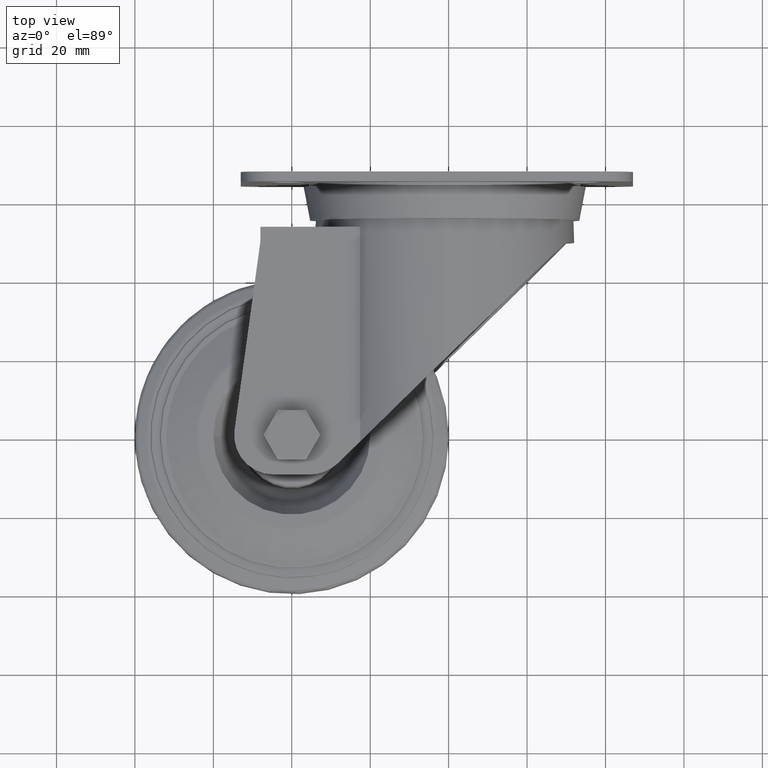
[diagram: clean part render]
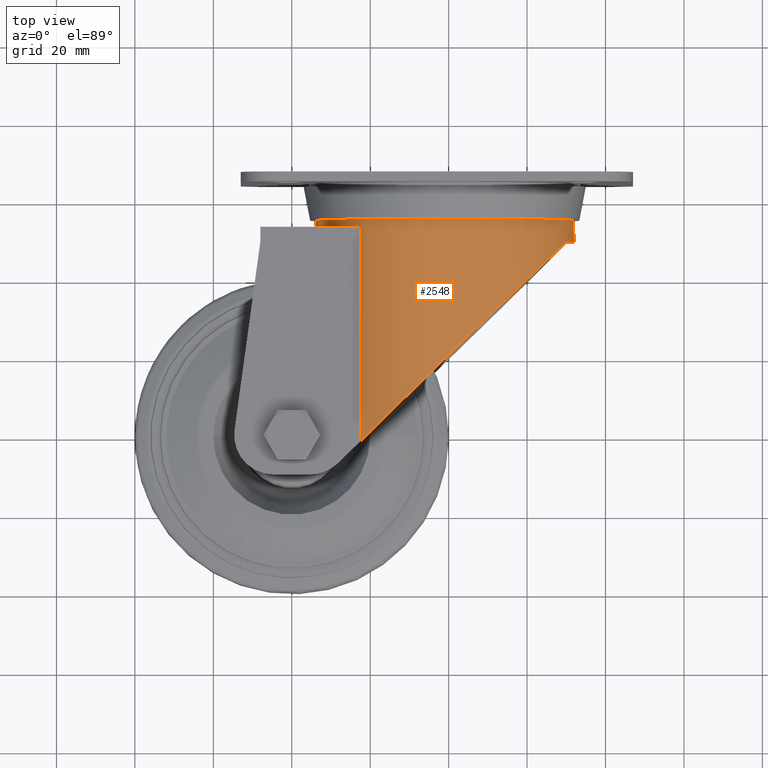
[diagram: same view with one face highlighted and labeled with its STEP entity id]
A machine part, top view. The second image highlights one B-rep face of the part: STEP entity #2548.
In plain terms, the highlighted cylindrical surface (bore or boss wall) has radius 33 mm, axis along (0, -1, 0).
Its self-contained STEP definition (entity closure, byte-faithful):
#55=ELLIPSE('',#2866,46.0100489024635,33.);
#56=ELLIPSE('',#2867,46.0100489024635,33.);
#57=ELLIPSE('',#2868,46.0100489024635,33.);
#265=LINE('',#4387,#393);
#266=LINE('',#4390,#394);
#267=LINE('',#4392,#395);
#393=VECTOR('',#3413,1000.);
#394=VECTOR('',#3416,1000.);
#395=VECTOR('',#3417,33.);
#487=CYLINDRICAL_SURFACE('',#2882,33.);
#575=FACE_OUTER_BOUND('',#751,.T.);
#751=EDGE_LOOP('',(#1977,#1978,#1979,#1980,#1981,#1982,#1983,#1984,#1985,
#1986));
#937=CIRCLE('',#2883,33.);
#938=CIRCLE('',#2884,33.);
#939=CIRCLE('',#2885,33.);
#1193=VERTEX_POINT('',#4328);
#1194=VERTEX_POINT('',#4330);
#1195=VERTEX_POINT('',#4332);
#1196=VERTEX_POINT('',#4334);
#1197=VERTEX_POINT('',#4336);
#1213=VERTEX_POINT('',#4386);
#1214=VERTEX_POINT('',#4388);
#1215=VERTEX_POINT('',#4391);
#1466=EDGE_CURVE('',#1193,#1194,#55,.T.);
#1468=EDGE_CURVE('',#1195,#1196,#56,.T.);
#1469=EDGE_CURVE('',#1196,#1197,#57,.T.);
#1494=EDGE_CURVE('',#1194,#1195,#937,.T.);
#1495=EDGE_CURVE('',#1213,#1193,#265,.T.);
#1496=EDGE_CURVE('',#1214,#1213,#938,.T.);
#1497=EDGE_CURVE('',#1214,#1197,#266,.T.);
#1498=EDGE_CURVE('',#1196,#1215,#267,.T.);
#1499=EDGE_CURVE('',#1215,#1215,#939,.F.);
#1977=ORIENTED_EDGE('',*,*,#1494,.F.);
#1978=ORIENTED_EDGE('',*,*,#1466,.F.);
#1979=ORIENTED_EDGE('',*,*,#1495,.F.);
#1980=ORIENTED_EDGE('',*,*,#1496,.F.);
#1981=ORIENTED_EDGE('',*,*,#1497,.T.);
#1982=ORIENTED_EDGE('',*,*,#1469,.F.);
#1983=ORIENTED_EDGE('',*,*,#1498,.T.);
#1984=ORIENTED_EDGE('',*,*,#1499,.T.);
#1985=ORIENTED_EDGE('',*,*,#1498,.F.);
#1986=ORIENTED_EDGE('',*,*,#1468,.F.);
#2548=ADVANCED_FACE('',(#575),#487,.T.);
#2866=AXIS2_PLACEMENT_3D('',#4331,#3358,#3359);
#2867=AXIS2_PLACEMENT_3D('',#4335,#3361,#3362);
#2868=AXIS2_PLACEMENT_3D('',#4337,#3363,#3364);
#2882=AXIS2_PLACEMENT_3D('',#4384,#3409,#3410);
#2883=AXIS2_PLACEMENT_3D('',#4385,#3411,#3412);
#2884=AXIS2_PLACEMENT_3D('',#4389,#3414,#3415);
#2885=AXIS2_PLACEMENT_3D('',#4393,#3418,#3419);
#3358=DIRECTION('center_axis',(0.696831757331626,-0.717234621287984,0.));
#3359=DIRECTION('ref_axis',(-0.717234621287984,-0.696831757331626,0.));
#3361=DIRECTION('center_axis',(0.696831757331626,-0.717234621287984,0.));
#3362=DIRECTION('ref_axis',(-0.717234621287984,-0.696831757331626,0.));
#3363=DIRECTION('center_axis',(0.696831757331626,-0.717234621287984,0.));
#3364=DIRECTION('ref_axis',(-0.717234621287984,-0.696831757331626,0.));
#3409=DIRECTION('center_axis',(0.,-1.,0.));
#3410=DIRECTION('ref_axis',(0.,0.,-1.));
#3411=DIRECTION('center_axis',(0.,-1.,0.));
#3412=DIRECTION('ref_axis',(0.,0.,-1.));
#3413=DIRECTION('',(0.,-1.,0.));
#3414=DIRECTION('center_axis',(0.,-1.,0.));
#3415=DIRECTION('ref_axis',(0.,0.,-1.));
#3416=DIRECTION('',(0.,-1.,0.));
#3417=DIRECTION('',(0.,1.,0.));
#3418=DIRECTION('center_axis',(0.,1.,0.));
#3419=DIRECTION('ref_axis',(0.,0.,1.));
#4328=CARTESIAN_POINT('',(17.459340771462,-1.54605775420849,-25.));
#4330=CARTESIAN_POINT('',(70.,49.5,-11.3137084989847));
#4331=CARTESIAN_POINT('Origin',(39.,19.3818436309046,0.));
#4332=CARTESIAN_POINT('',(70.,49.5,11.3137084989848));
#4334=CARTESIAN_POINT('',(39.,19.3818436309046,33.));
#4335=CARTESIAN_POINT('Origin',(39.,19.3818436309046,0.));
#4336=CARTESIAN_POINT('',(17.459340771462,-1.54605775420849,25.));
#4337=CARTESIAN_POINT('Origin',(39.,19.3818436309046,0.));
#4384=CARTESIAN_POINT('Origin',(39.,-10.,0.));
#4385=CARTESIAN_POINT('Origin',(39.,49.5,0.));
#4386=CARTESIAN_POINT('',(17.459340771462,53.2,-25.));
#4387=CARTESIAN_POINT('',(17.459340771462,-10.,-25.));
#4388=CARTESIAN_POINT('',(17.459340771462,53.2,25.));
#4389=CARTESIAN_POINT('Origin',(39.,53.2,0.));
#4390=CARTESIAN_POINT('',(17.459340771462,-10.,25.));
#4391=CARTESIAN_POINT('',(39.,55.2,33.));
#4392=CARTESIAN_POINT('',(39.,-10.,33.));
#4393=CARTESIAN_POINT('Origin',(39.,55.2,0.));